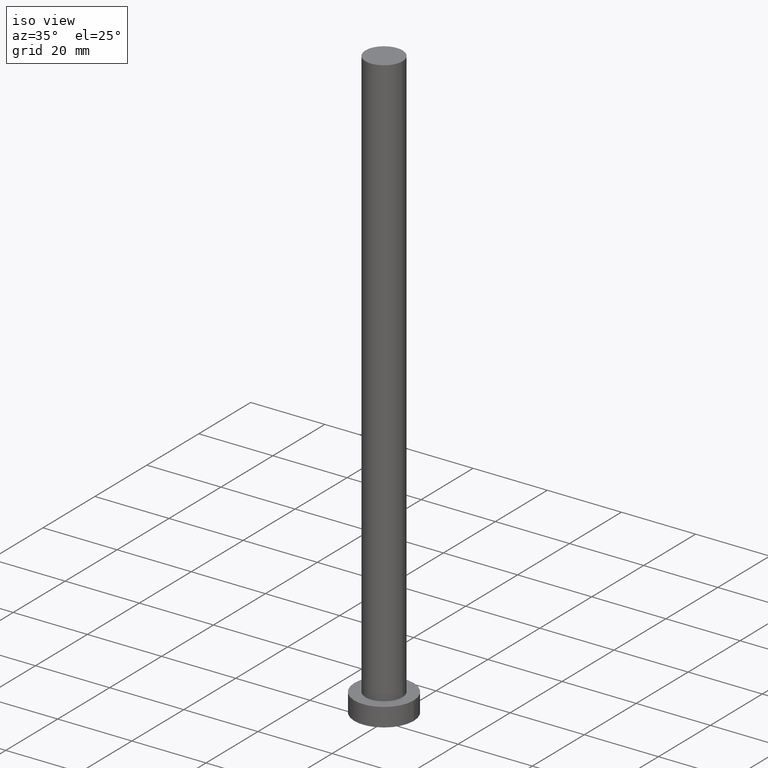
[diagram: clean part render]
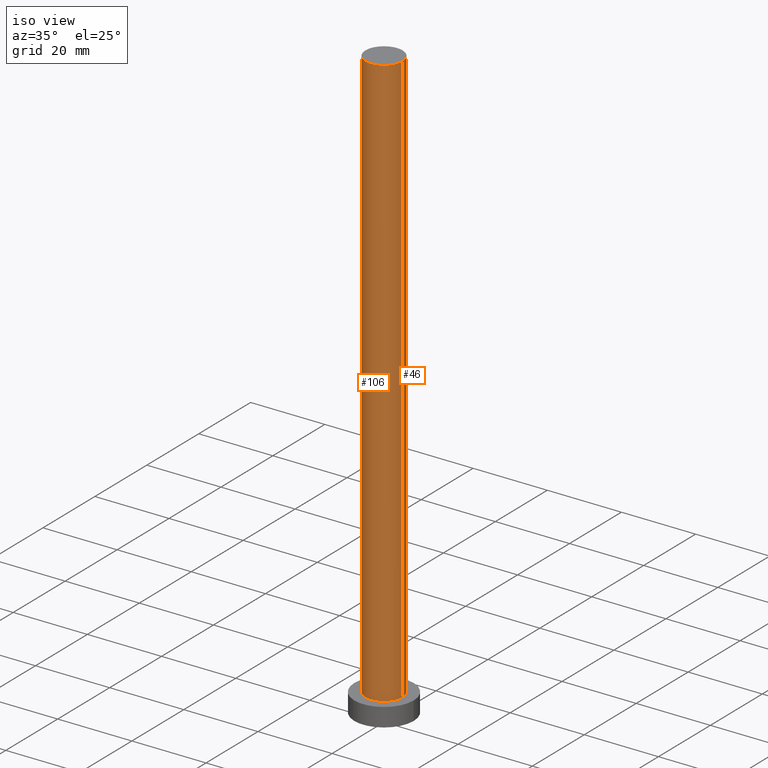
[diagram: same view with one multi-face feature highlighted, each face labeled with its STEP entity id]
A machine part, iso view. The highlighted faces form ONE feature: a constant-radius fillet chain: 2 tangent blend faces with common blend radius 5 mm. The faces share edges in the B-rep.
Their STEP definitions:
[1] entity #106 (Cylinder):
#2 = DIRECTION ( 'NONE',  ( -0.000000000000000000, -0.000000000000000000, -1.000000000000000000 ) ) ;
#6 = EDGE_LOOP ( 'NONE', ( #243, #186, #138, #253 ) ) ;
#11 = DIRECTION ( 'NONE',  ( 0.000000000000000000, 0.000000000000000000, 1.000000000000000000 ) ) ;
#16 = VERTEX_POINT ( 'NONE', #199 ) ;
#20 = EDGE_CURVE ( 'NONE', #16, #160, #62, .T. ) ;
#30 = CARTESIAN_POINT ( 'NONE',  ( -5.000000000000000888, 0.000000000000000000, 160.0000000000000000 ) ) ;
#42 = DIRECTION ( 'NONE',  ( -0.000000000000000000, -0.000000000000000000, -1.000000000000000000 ) ) ;
#47 = DIRECTION ( 'NONE',  ( -0.000000000000000000, -0.000000000000000000, -1.000000000000000000 ) ) ;
#49 = CARTESIAN_POINT ( 'NONE',  ( -5.000000000000000888, 0.000000000000000000, 5.000000000000000000 ) ) ;
#54 = AXIS2_PLACEMENT_3D ( 'NONE', #148, #134, #114 ) ;
#62 = LINE ( 'NONE', #129, #163 ) ;
#82 = AXIS2_PLACEMENT_3D ( 'NONE', #169, #11, #111 ) ;
#106 = ADVANCED_FACE ( 'NONE', ( #242 ), #161, .T. ) ;
#111 = DIRECTION ( 'NONE',  ( 1.000000000000000000, 0.000000000000000000, 0.000000000000000000 ) ) ;
#114 = DIRECTION ( 'NONE',  ( 1.000000000000000000, 0.000000000000000000, 0.000000000000000000 ) ) ;
#127 = DIRECTION ( 'NONE',  ( -1.000000000000000000, 0.000000000000000000, 0.000000000000000000 ) ) ;
#129 = CARTESIAN_POINT ( 'NONE',  ( 5.000000000000000888, 6.123233995736767268E-16, 160.0000000000000000 ) ) ;
#134 = DIRECTION ( 'NONE',  ( 0.000000000000000000, 0.000000000000000000, 1.000000000000000000 ) ) ;
#138 = ORIENTED_EDGE ( 'NONE', *, *, #178, .T. ) ;
#148 = CARTESIAN_POINT ( 'NONE',  ( 0.000000000000000000, 0.000000000000000000, 5.000000000000000000 ) ) ;
#160 = VERTEX_POINT ( 'NONE', #247 ) ;
#161 = CYLINDRICAL_SURFACE ( 'NONE', #194, 5.000000000000000888 ) ;
#163 = VECTOR ( 'NONE', #2, 1000.000000000000000 ) ;
#164 = CIRCLE ( 'NONE', #82, 5.000000000000000888 ) ;
#169 = CARTESIAN_POINT ( 'NONE',  ( 0.000000000000000000, 0.000000000000000000, 160.0000000000000000 ) ) ;
#171 = CARTESIAN_POINT ( 'NONE',  ( -5.000000000000000888, 0.000000000000000000, 160.0000000000000000 ) ) ;
#176 = VERTEX_POINT ( 'NONE', #30 ) ;
#178 = EDGE_CURVE ( 'NONE', #176, #217, #215, .T. ) ;
#186 = ORIENTED_EDGE ( 'NONE', *, *, #216, .F. ) ;
#187 = CIRCLE ( 'NONE', #54, 5.000000000000000888 ) ;
#194 = AXIS2_PLACEMENT_3D ( 'NONE', #222, #42, #127 ) ;
#199 = CARTESIAN_POINT ( 'NONE',  ( 5.000000000000000888, 6.123233995736767268E-16, 160.0000000000000000 ) ) ;
#215 = LINE ( 'NONE', #171, #246 ) ;
#216 = EDGE_CURVE ( 'NONE', #176, #16, #164, .T. ) ;
#217 = VERTEX_POINT ( 'NONE', #49 ) ;
#222 = CARTESIAN_POINT ( 'NONE',  ( 0.000000000000000000, 0.000000000000000000, 160.0000000000000000 ) ) ;
#236 = EDGE_CURVE ( 'NONE', #217, #160, #187, .T. ) ;
#242 = FACE_OUTER_BOUND ( 'NONE', #6, .T. ) ;
#243 = ORIENTED_EDGE ( 'NONE', *, *, #20, .F. ) ;
#246 = VECTOR ( 'NONE', #47, 1000.000000000000000 ) ;
#247 = CARTESIAN_POINT ( 'NONE',  ( 5.000000000000000888, 6.123233995736767268E-16, 5.000000000000000000 ) ) ;
#253 = ORIENTED_EDGE ( 'NONE', *, *, #236, .T. ) ;
[2] entity #46 (Cylinder):
#2 = DIRECTION ( 'NONE',  ( -0.000000000000000000, -0.000000000000000000, -1.000000000000000000 ) ) ;
#10 = AXIS2_PLACEMENT_3D ( 'NONE', #21, #143, #208 ) ;
#16 = VERTEX_POINT ( 'NONE', #199 ) ;
#17 = ORIENTED_EDGE ( 'NONE', *, *, #79, .F. ) ;
#20 = EDGE_CURVE ( 'NONE', #16, #160, #62, .T. ) ;
#21 = CARTESIAN_POINT ( 'NONE',  ( 0.000000000000000000, 0.000000000000000000, 160.0000000000000000 ) ) ;
#30 = CARTESIAN_POINT ( 'NONE',  ( -5.000000000000000888, 0.000000000000000000, 160.0000000000000000 ) ) ;
#40 = CARTESIAN_POINT ( 'NONE',  ( 0.000000000000000000, 0.000000000000000000, 160.0000000000000000 ) ) ;
#41 = EDGE_LOOP ( 'NONE', ( #17, #154, #101, #121 ) ) ;
#46 = ADVANCED_FACE ( 'NONE', ( #146 ), #162, .T. ) ;
#47 = DIRECTION ( 'NONE',  ( -0.000000000000000000, -0.000000000000000000, -1.000000000000000000 ) ) ;
#49 = CARTESIAN_POINT ( 'NONE',  ( -5.000000000000000888, 0.000000000000000000, 5.000000000000000000 ) ) ;
#51 = DIRECTION ( 'NONE',  ( 0.000000000000000000, 0.000000000000000000, 1.000000000000000000 ) ) ;
#62 = LINE ( 'NONE', #129, #163 ) ;
#79 = EDGE_CURVE ( 'NONE', #16, #176, #167, .T. ) ;
#101 = ORIENTED_EDGE ( 'NONE', *, *, #250, .T. ) ;
#112 = DIRECTION ( 'NONE',  ( 1.000000000000000000, 0.000000000000000000, 0.000000000000000000 ) ) ;
#121 = ORIENTED_EDGE ( 'NONE', *, *, #178, .F. ) ;
#129 = CARTESIAN_POINT ( 'NONE',  ( 5.000000000000000888, 6.123233995736767268E-16, 160.0000000000000000 ) ) ;
#130 = CARTESIAN_POINT ( 'NONE',  ( 0.000000000000000000, 0.000000000000000000, 5.000000000000000000 ) ) ;
#143 = DIRECTION ( 'NONE',  ( -0.000000000000000000, -0.000000000000000000, -1.000000000000000000 ) ) ;
#146 = FACE_OUTER_BOUND ( 'NONE', #41, .T. ) ;
#154 = ORIENTED_EDGE ( 'NONE', *, *, #20, .T. ) ;
#160 = VERTEX_POINT ( 'NONE', #247 ) ;
#162 = CYLINDRICAL_SURFACE ( 'NONE', #10, 5.000000000000000888 ) ;
#163 = VECTOR ( 'NONE', #2, 1000.000000000000000 ) ;
#167 = CIRCLE ( 'NONE', #209, 5.000000000000000888 ) ;
#171 = CARTESIAN_POINT ( 'NONE',  ( -5.000000000000000888, 0.000000000000000000, 160.0000000000000000 ) ) ;
#176 = VERTEX_POINT ( 'NONE', #30 ) ;
#178 = EDGE_CURVE ( 'NONE', #176, #217, #215, .T. ) ;
#183 = DIRECTION ( 'NONE',  ( 1.000000000000000000, 0.000000000000000000, 0.000000000000000000 ) ) ;
#199 = CARTESIAN_POINT ( 'NONE',  ( 5.000000000000000888, 6.123233995736767268E-16, 160.0000000000000000 ) ) ;
#201 = DIRECTION ( 'NONE',  ( 0.000000000000000000, 0.000000000000000000, 1.000000000000000000 ) ) ;
#208 = DIRECTION ( 'NONE',  ( -1.000000000000000000, 0.000000000000000000, 0.000000000000000000 ) ) ;
#209 = AXIS2_PLACEMENT_3D ( 'NONE', #40, #201, #183 ) ;
#213 = AXIS2_PLACEMENT_3D ( 'NONE', #130, #51, #112 ) ;
#215 = LINE ( 'NONE', #171, #246 ) ;
#217 = VERTEX_POINT ( 'NONE', #49 ) ;
#235 = CIRCLE ( 'NONE', #213, 5.000000000000000888 ) ;
#246 = VECTOR ( 'NONE', #47, 1000.000000000000000 ) ;
#247 = CARTESIAN_POINT ( 'NONE',  ( 5.000000000000000888, 6.123233995736767268E-16, 5.000000000000000000 ) ) ;
#250 = EDGE_CURVE ( 'NONE', #160, #217, #235, .T. ) ;